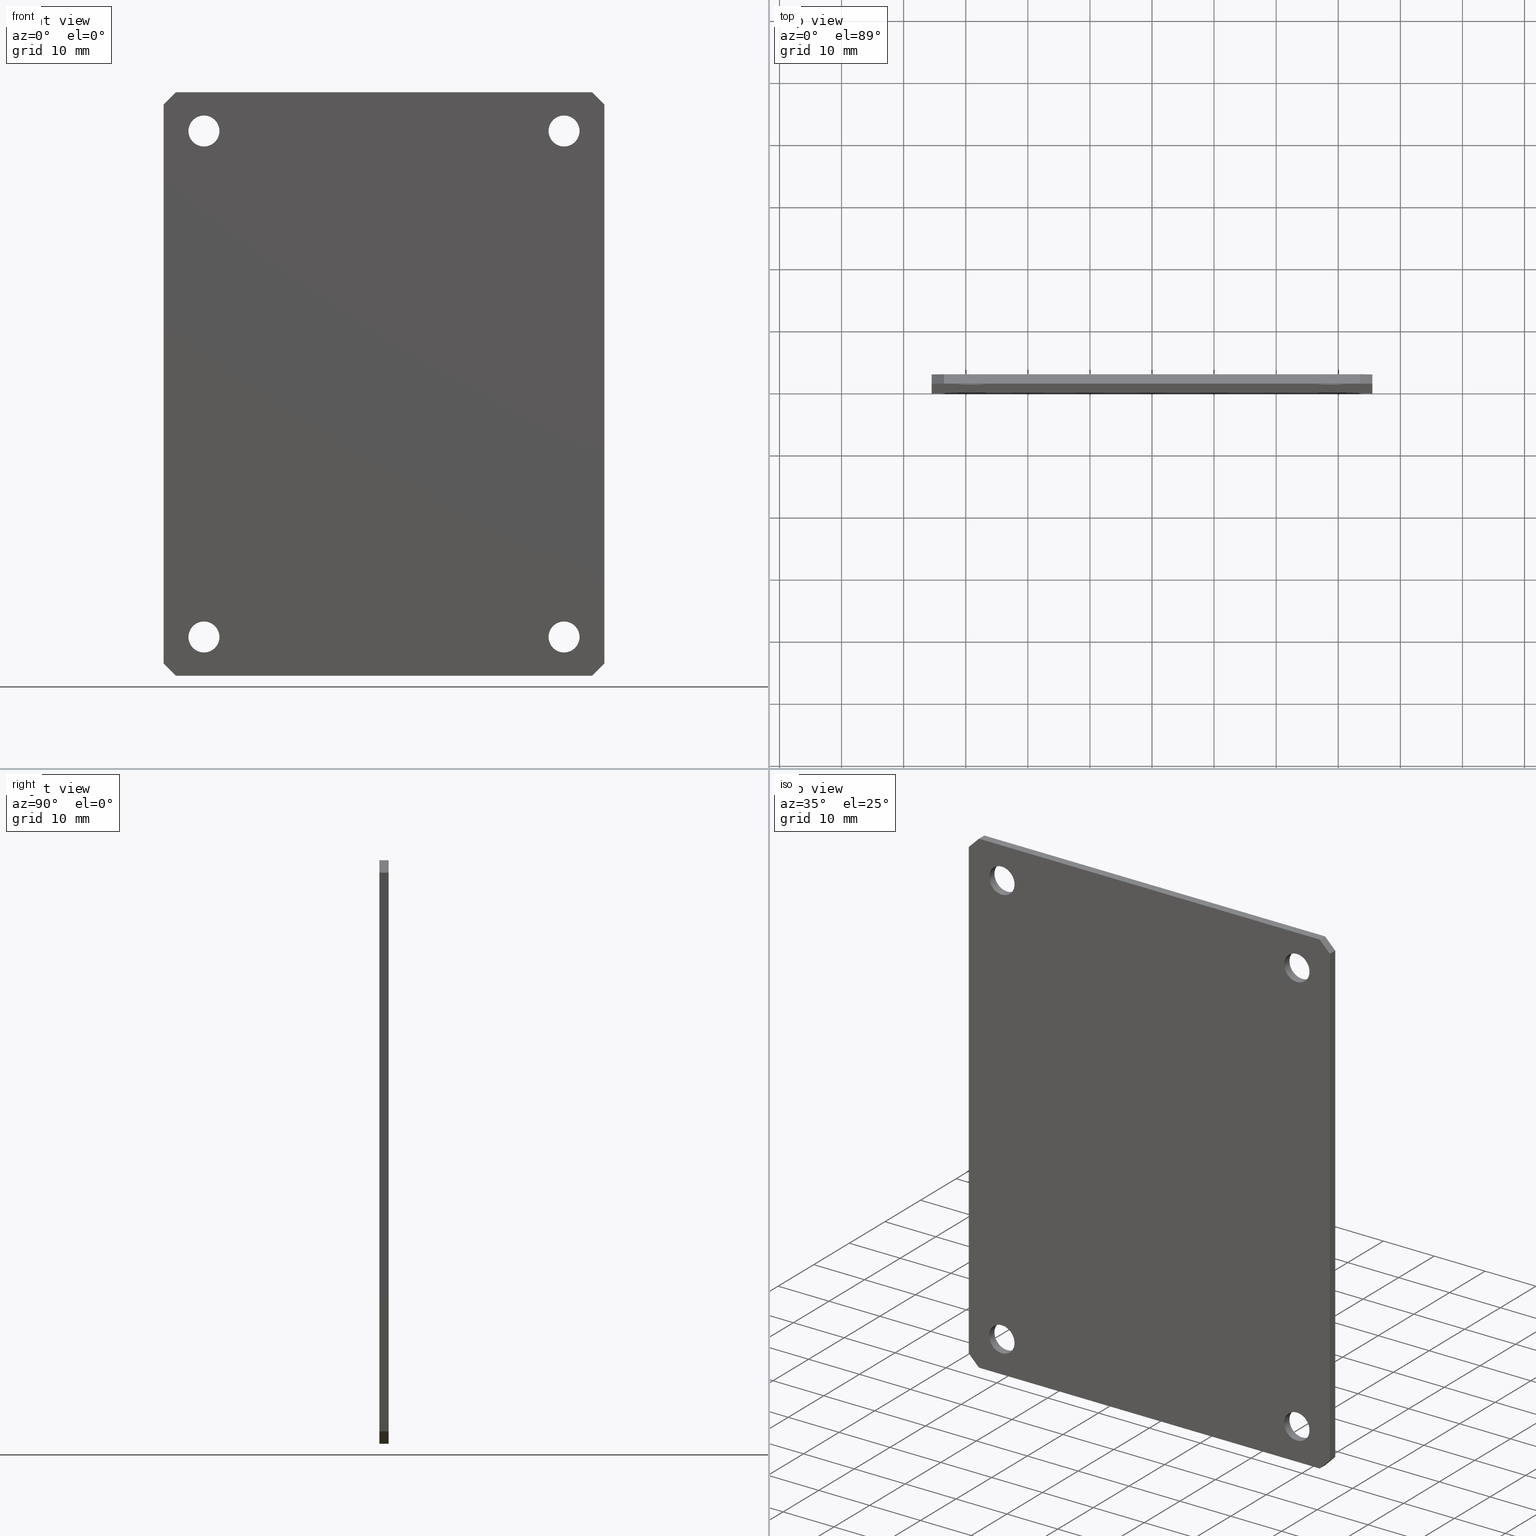
[diagram: canonical four-view strip — front | top / right | iso, engineering-drawing reading convention]
A machine part, canonical four-view strip (front | top / right | iso — engineering-drawing reading convention). The complete STEP part file that produces these views, byte-faithful:
ISO-10303-21;
HEADER;
FILE_DESCRIPTION (( 'STEP AP214' ),
    '1' );
FILE_NAME ('TM 0812.STEP',
    '2010-02-17T12:29:35',
    ( 'KennethW' ),
    ( 'FIBOX' ),
    'SwSTEP 2.0',
    'SolidWorks 2009',
    '' );
FILE_SCHEMA (( 'AUTOMOTIVE_DESIGN' ));
ENDSEC;

DATA;
#1 = VERTEX_POINT ( 'NONE', #412 ) ;
#2 = ORIENTED_EDGE ( 'NONE', *, *, #6, .F. ) ;
#3 = EDGE_CURVE ( 'NONE', #147, #1, #605, .T. ) ;
#4 = ORIENTED_EDGE ( 'NONE', *, *, #3, .T. ) ;
#5 = VERTEX_POINT ( 'NONE', #393 ) ;
#6 = EDGE_CURVE ( 'NONE', #5, #138, #392, .T. ) ;
#7 = ORIENTED_EDGE ( 'NONE', *, *, #63, .F. ) ;
#8 = ORIENTED_EDGE ( 'NONE', *, *, #9, .F. ) ;
#9 = EDGE_CURVE ( 'NONE', #12, #134, #400, .T. ) ;
#10 = ORIENTED_EDGE ( 'NONE', *, *, #60, .F. ) ;
#11 = ORIENTED_EDGE ( 'NONE', *, *, #24, .F. ) ;
#12 = VERTEX_POINT ( 'NONE', #395 ) ;
#13 = VERTEX_POINT ( 'NONE', #396 ) ;
#14 = EDGE_LOOP ( 'NONE', ( #49, #117, #111, #92 ) ) ;
#15 = ORIENTED_EDGE ( 'NONE', *, *, #16, .F. ) ;
#16 = EDGE_CURVE ( 'NONE', #134, #17, #411, .T. ) ;
#17 = VERTEX_POINT ( 'NONE', #407 ) ;
#18 = ORIENTED_EDGE ( 'NONE', *, *, #59, .T. ) ;
#19 = EDGE_CURVE ( 'NONE', #17, #62, #406, .T. ) ;
#20 = EDGE_LOOP ( 'NONE', ( #34, #33, #22, #130 ) ) ;
#21 = ORIENTED_EDGE ( 'NONE', *, *, #19, .F. ) ;
#22 = ORIENTED_EDGE ( 'NONE', *, *, #143, .F. ) ;
#23 = ADVANCED_FACE ( 'NONE', ( #402 ), #401, .F. ) ;
#24 = EDGE_CURVE ( 'NONE', #199, #198, #538, .T. ) ;
#25 = EDGE_LOOP ( 'NONE', ( #28, #26 ) ) ;
#26 = ORIENTED_EDGE ( 'NONE', *, *, #27, .T. ) ;
#27 = EDGE_CURVE ( 'NONE', #212, #215, #529, .T. ) ;
#28 = ORIENTED_EDGE ( 'NONE', *, *, #214, .T. ) ;
#29 = ADVANCED_FACE ( 'NONE', ( #524, #523, #522, #521, #520 ), #519, .F. ) ;
#30 = EDGE_LOOP ( 'NONE', ( #181, #179 ) ) ;
#31 = EDGE_CURVE ( 'NONE', #144, #140, #517, .T. ) ;
#32 = EDGE_CURVE ( 'NONE', #191, #190, #510, .T. ) ;
#33 = ORIENTED_EDGE ( 'NONE', *, *, #31, .F. ) ;
#34 = ORIENTED_EDGE ( 'NONE', *, *, #139, .T. ) ;
#35 = ORIENTED_EDGE ( 'NONE', *, *, #166, .T. ) ;
#36 = EDGE_LOOP ( 'NONE', ( #37, #43 ) ) ;
#37 = ORIENTED_EDGE ( 'NONE', *, *, #219, .T. ) ;
#38 = EDGE_CURVE ( 'NONE', #140, #13, #505, .T. ) ;
#39 = ORIENTED_EDGE ( 'NONE', *, *, #173, .T. ) ;
#40 = EDGE_CURVE ( 'NONE', #175, #174, #501, .T. ) ;
#41 = ORIENTED_EDGE ( 'NONE', *, *, #189, .F. ) ;
#42 = ORIENTED_EDGE ( 'NONE', *, *, #40, .T. ) ;
#43 = ORIENTED_EDGE ( 'NONE', *, *, #44, .T. ) ;
#44 = EDGE_CURVE ( 'NONE', #202, #220, #496, .T. ) ;
#45 = ADVANCED_FACE ( 'NONE', ( #491 ), #490, .F. ) ;
#46 = EDGE_CURVE ( 'NONE', #54, #222, #488, .T. ) ;
#47 = EDGE_LOOP ( 'NONE', ( #39, #42 ) ) ;
#48 = EDGE_LOOP ( 'NONE', ( #41, #137 ) ) ;
#49 = ORIENTED_EDGE ( 'NONE', *, *, #9, .T. ) ;
#50 = ORIENTED_EDGE ( 'NONE', *, *, #51, .T. ) ;
#51 = EDGE_CURVE ( 'NONE', #52, #57, #481, .T. ) ;
#52 = VERTEX_POINT ( 'NONE', #476 ) ;
#53 = EDGE_CURVE ( 'NONE', #57, #54, #477, .T. ) ;
#54 = VERTEX_POINT ( 'NONE', #472 ) ;
#55 = ORIENTED_EDGE ( 'NONE', *, *, #46, .T. ) ;
#56 = ORIENTED_EDGE ( 'NONE', *, *, #53, .T. ) ;
#57 = VERTEX_POINT ( 'NONE', #471 ) ;
#58 = EDGE_CURVE ( 'NONE', #185, #134, #470, .T. ) ;
#59 = EDGE_CURVE ( 'NONE', #185, #52, #466, .T. ) ;
#60 = EDGE_CURVE ( 'NONE', #13, #12, #462, .T. ) ;
#61 = ORIENTED_EDGE ( 'NONE', *, *, #38, .F. ) ;
#62 = VERTEX_POINT ( 'NONE', #458 ) ;
#63 = EDGE_CURVE ( 'NONE', #62, #5, #457, .T. ) ;
#64 = ORIENTED_EDGE ( 'NONE', *, *, #211, .F. ) ;
#65 = ORIENTED_EDGE ( 'NONE', *, *, #151, .T. ) ;
#66 = ORIENTED_EDGE ( 'NONE', *, *, #217, .T. ) ;
#67 = ORIENTED_EDGE ( 'NONE', *, *, #27, .F. ) ;
#68 = ADVANCED_FACE ( 'NONE', ( #453 ), #452, .F. ) ;
#69 = EDGE_LOOP ( 'NONE', ( #70, #71, #72, #73 ) ) ;
#70 = ORIENTED_EDGE ( 'NONE', *, *, #201, .F. ) ;
#71 = ORIENTED_EDGE ( 'NONE', *, *, #24, .T. ) ;
#72 = ORIENTED_EDGE ( 'NONE', *, *, #203, .T. ) ;
#73 = ORIENTED_EDGE ( 'NONE', *, *, #44, .F. ) ;
#74 = CLOSED_SHELL ( 'NONE', ( #194, #204, #186, #167, #159, #29, #45, #23, #124, #125, #106, #90, #114, #98, #104, #82, #75, #68 ) ) ;
#75 = ADVANCED_FACE ( 'NONE', ( #450 ), #446, .F. ) ;
#76 = EDGE_LOOP ( 'NONE', ( #64, #65, #66, #67 ) ) ;
#77 = ORIENTED_EDGE ( 'NONE', *, *, #40, .F. ) ;
#78 = ORIENTED_EDGE ( 'NONE', *, *, #156, .F. ) ;
#79 = ORIENTED_EDGE ( 'NONE', *, *, #148, .T. ) ;
#80 = ORIENTED_EDGE ( 'NONE', *, *, #158, .T. ) ;
#81 = ORIENTED_EDGE ( 'NONE', *, *, #182, .F. ) ;
#82 = ADVANCED_FACE ( 'NONE', ( #444 ), #440, .F. ) ;
#83 = ORIENTED_EDGE ( 'NONE', *, *, #19, .T. ) ;
#84 = ORIENTED_EDGE ( 'NONE', *, *, #85, .F. ) ;
#85 = EDGE_CURVE ( 'NONE', #57, #62, #435, .T. ) ;
#86 = ORIENTED_EDGE ( 'NONE', *, *, #87, .F. ) ;
#87 = EDGE_CURVE ( 'NONE', #52, #17, #431, .T. ) ;
#88 = ORIENTED_EDGE ( 'NONE', *, *, #59, .F. ) ;
#89 = ORIENTED_EDGE ( 'NONE', *, *, #58, .T. ) ;
#90 = ADVANCED_FACE ( 'NONE', ( #427 ), #425, .F. ) ;
#91 = EDGE_LOOP ( 'NONE', ( #83, #84, #112, #113 ) ) ;
#92 = ORIENTED_EDGE ( 'NONE', *, *, #126, .T. ) ;
#93 = ORIENTED_EDGE ( 'NONE', *, *, #63, .T. ) ;
#94 = ORIENTED_EDGE ( 'NONE', *, *, #95, .F. ) ;
#95 = EDGE_CURVE ( 'NONE', #54, #5, #426, .T. ) ;
#96 = ORIENTED_EDGE ( 'NONE', *, *, #53, .F. ) ;
#97 = ORIENTED_EDGE ( 'NONE', *, *, #85, .T. ) ;
#98 = ADVANCED_FACE ( 'NONE', ( #417 ), #416, .F. ) ;
#99 = EDGE_LOOP ( 'NONE', ( #100, #101, #102, #103 ) ) ;
#100 = ORIENTED_EDGE ( 'NONE', *, *, #6, .T. ) ;
#101 = ORIENTED_EDGE ( 'NONE', *, *, #133, .F. ) ;
#102 = ORIENTED_EDGE ( 'NONE', *, *, #46, .F. ) ;
#103 = ORIENTED_EDGE ( 'NONE', *, *, #95, .T. ) ;
#104 = ADVANCED_FACE ( 'NONE', ( #569 ), #568, .F. ) ;
#105 = EDGE_LOOP ( 'NONE', ( #78, #79, #80, #81 ) ) ;
#106 = ADVANCED_FACE ( 'NONE', ( #566 ), #562, .F. ) ;
#107 = ORIENTED_EDGE ( 'NONE', *, *, #16, .T. ) ;
#108 = EDGE_LOOP ( 'NONE', ( #109, #110, #35, #77 ) ) ;
#109 = ORIENTED_EDGE ( 'NONE', *, *, #177, .F. ) ;
#110 = ORIENTED_EDGE ( 'NONE', *, *, #32, .T. ) ;
#111 = ORIENTED_EDGE ( 'NONE', *, *, #184, .F. ) ;
#112 = ORIENTED_EDGE ( 'NONE', *, *, #51, .F. ) ;
#113 = ORIENTED_EDGE ( 'NONE', *, *, #87, .T. ) ;
#114 = ADVANCED_FACE ( 'NONE', ( #556 ), #560, .F. ) ;
#115 = EDGE_LOOP ( 'NONE', ( #93, #94, #96, #97 ) ) ;
#116 = EDGE_LOOP ( 'NONE', ( #107, #86, #88, #89 ) ) ;
#117 = ORIENTED_EDGE ( 'NONE', *, *, #58, .F. ) ;
#118 = EDGE_LOOP ( 'NONE', ( #122, #119, #120, #121 ) ) ;
#119 = ORIENTED_EDGE ( 'NONE', *, *, #126, .F. ) ;
#120 = ORIENTED_EDGE ( 'NONE', *, *, #3, .F. ) ;
#121 = ORIENTED_EDGE ( 'NONE', *, *, #129, .T. ) ;
#122 = ORIENTED_EDGE ( 'NONE', *, *, #60, .T. ) ;
#123 = ORIENTED_EDGE ( 'NONE', *, *, #31, .T. ) ;
#124 = ADVANCED_FACE ( 'NONE', ( #550 ), #553, .F. ) ;
#125 = ADVANCED_FACE ( 'NONE', ( #544 ), #547, .F. ) ;
#126 = EDGE_CURVE ( 'NONE', #1, #12, #539, .T. ) ;
#127 = ORIENTED_EDGE ( 'NONE', *, *, #129, .F. ) ;
#128 = ORIENTED_EDGE ( 'NONE', *, *, #146, .F. ) ;
#129 = EDGE_CURVE ( 'NONE', #147, #13, #599, .T. ) ;
#130 = ORIENTED_EDGE ( 'NONE', *, *, #133, .T. ) ;
#131 = EDGE_LOOP ( 'NONE', ( #132, #127, #128, #123 ) ) ;
#132 = ORIENTED_EDGE ( 'NONE', *, *, #38, .T. ) ;
#133 = EDGE_CURVE ( 'NONE', #222, #138, #595, .T. ) ;
#134 = VERTEX_POINT ( 'NONE', #591 ) ;
#135 = ORIENTED_EDGE ( 'NONE', *, *, #197, .F. ) ;
#136 = EDGE_LOOP ( 'NONE', ( #135, #11 ) ) ;
#137 = ORIENTED_EDGE ( 'NONE', *, *, #32, .F. ) ;
#138 = VERTEX_POINT ( 'NONE', #590 ) ;
#139 = EDGE_CURVE ( 'NONE', #138, #140, #589, .T. ) ;
#140 = VERTEX_POINT ( 'NONE', #585 ) ;
#141 = EDGE_LOOP ( 'NONE', ( #142, #145, #4, #183, #18, #50, #56, #55 ) ) ;
#142 = ORIENTED_EDGE ( 'NONE', *, *, #143, .T. ) ;
#143 = EDGE_CURVE ( 'NONE', #222, #144, #584, .T. ) ;
#144 = VERTEX_POINT ( 'NONE', #580 ) ;
#145 = ORIENTED_EDGE ( 'NONE', *, *, #146, .T. ) ;
#146 = EDGE_CURVE ( 'NONE', #144, #147, #579, .T. ) ;
#147 = VERTEX_POINT ( 'NONE', #575 ) ;
#148 = EDGE_CURVE ( 'NONE', #165, #164, #574, .T. ) ;
#149 = EDGE_LOOP ( 'NONE', ( #150, #176 ) ) ;
#150 = ORIENTED_EDGE ( 'NONE', *, *, #170, .F. ) ;
#151 = EDGE_CURVE ( 'NONE', #209, #208, #629, .T. ) ;
#152 = ORIENTED_EDGE ( 'NONE', *, *, #153, .F. ) ;
#153 = EDGE_CURVE ( 'NONE', #154, #163, #624, .T. ) ;
#154 = VERTEX_POINT ( 'NONE', #619 ) ;
#155 = ORIENTED_EDGE ( 'NONE', *, *, #156, .T. ) ;
#156 = EDGE_CURVE ( 'NONE', #165, #163, #618, .T. ) ;
#157 = ORIENTED_EDGE ( 'NONE', *, *, #158, .F. ) ;
#158 = EDGE_CURVE ( 'NONE', #164, #154, #614, .T. ) ;
#159 = ADVANCED_FACE ( 'NONE', ( #610, #609, #608, #607, #606 ), #232, .T. ) ;
#160 = EDGE_LOOP ( 'NONE', ( #161, #162 ) ) ;
#161 = ORIENTED_EDGE ( 'NONE', *, *, #207, .F. ) ;
#162 = ORIENTED_EDGE ( 'NONE', *, *, #151, .F. ) ;
#163 = VERTEX_POINT ( 'NONE', #227 ) ;
#164 = VERTEX_POINT ( 'NONE', #226 ) ;
#165 = VERTEX_POINT ( 'NONE', #225 ) ;
#166 = EDGE_CURVE ( 'NONE', #190, #174, #224, .T. ) ;
#167 = ADVANCED_FACE ( 'NONE', ( #250 ), #249, .F. ) ;
#168 = EDGE_LOOP ( 'NONE', ( #169, #155, #152, #157 ) ) ;
#169 = ORIENTED_EDGE ( 'NONE', *, *, #170, .T. ) ;
#170 = EDGE_CURVE ( 'NONE', #164, #165, #244, .T. ) ;
#171 = ORIENTED_EDGE ( 'NONE', *, *, #166, .F. ) ;
#172 = ORIENTED_EDGE ( 'NONE', *, *, #173, .F. ) ;
#173 = EDGE_CURVE ( 'NONE', #174, #175, #239, .T. ) ;
#174 = VERTEX_POINT ( 'NONE', #234 ) ;
#175 = VERTEX_POINT ( 'NONE', #233 ) ;
#176 = ORIENTED_EDGE ( 'NONE', *, *, #148, .F. ) ;
#177 = EDGE_CURVE ( 'NONE', #191, #175, #288, .T. ) ;
#178 = EDGE_LOOP ( 'NONE', ( #180, #2, #7, #21, #15, #8, #10, #61 ) ) ;
#179 = ORIENTED_EDGE ( 'NONE', *, *, #182, .T. ) ;
#180 = ORIENTED_EDGE ( 'NONE', *, *, #139, .F. ) ;
#181 = ORIENTED_EDGE ( 'NONE', *, *, #153, .T. ) ;
#182 = EDGE_CURVE ( 'NONE', #163, #154, #284, .T. ) ;
#183 = ORIENTED_EDGE ( 'NONE', *, *, #184, .T. ) ;
#184 = EDGE_CURVE ( 'NONE', #1, #185, #279, .T. ) ;
#185 = VERTEX_POINT ( 'NONE', #275 ) ;
#186 = ADVANCED_FACE ( 'NONE', ( #274 ), #273, .F. ) ;
#187 = EDGE_LOOP ( 'NONE', ( #188, #192, #172, #171 ) ) ;
#188 = ORIENTED_EDGE ( 'NONE', *, *, #189, .T. ) ;
#189 = EDGE_CURVE ( 'NONE', #190, #191, #268, .T. ) ;
#190 = VERTEX_POINT ( 'NONE', #263 ) ;
#191 = VERTEX_POINT ( 'NONE', #262 ) ;
#192 = ORIENTED_EDGE ( 'NONE', *, *, #177, .T. ) ;
#193 = MANIFOLD_SOLID_BREP ( 'NONE', #74 ) ;
#194 = ADVANCED_FACE ( 'NONE', ( #303 ), #302, .F. ) ;
#195 = EDGE_LOOP ( 'NONE', ( #196, #200, #218, #221 ) ) ;
#196 = ORIENTED_EDGE ( 'NONE', *, *, #197, .T. ) ;
#197 = EDGE_CURVE ( 'NONE', #198, #199, #301, .T. ) ;
#198 = VERTEX_POINT ( 'NONE', #292 ) ;
#199 = VERTEX_POINT ( 'NONE', #291 ) ;
#200 = ORIENTED_EDGE ( 'NONE', *, *, #201, .T. ) ;
#201 = EDGE_CURVE ( 'NONE', #199, #202, #290, .T. ) ;
#202 = VERTEX_POINT ( 'NONE', #339 ) ;
#203 = EDGE_CURVE ( 'NONE', #198, #220, #338, .T. ) ;
#204 = ADVANCED_FACE ( 'NONE', ( #334 ), #333, .F. ) ;
#205 = EDGE_LOOP ( 'NONE', ( #206, #210, #213, #216 ) ) ;
#206 = ORIENTED_EDGE ( 'NONE', *, *, #207, .T. ) ;
#207 = EDGE_CURVE ( 'NONE', #208, #209, #331, .T. ) ;
#208 = VERTEX_POINT ( 'NONE', #323 ) ;
#209 = VERTEX_POINT ( 'NONE', #322 ) ;
#210 = ORIENTED_EDGE ( 'NONE', *, *, #211, .T. ) ;
#211 = EDGE_CURVE ( 'NONE', #209, #212, #321, .T. ) ;
#212 = VERTEX_POINT ( 'NONE', #317 ) ;
#213 = ORIENTED_EDGE ( 'NONE', *, *, #214, .F. ) ;
#214 = EDGE_CURVE ( 'NONE', #215, #212, #316, .T. ) ;
#215 = VERTEX_POINT ( 'NONE', #311 ) ;
#216 = ORIENTED_EDGE ( 'NONE', *, *, #217, .F. ) ;
#217 = EDGE_CURVE ( 'NONE', #208, #215, #310, .T. ) ;
#218 = ORIENTED_EDGE ( 'NONE', *, *, #219, .F. ) ;
#219 = EDGE_CURVE ( 'NONE', #220, #202, #363, .T. ) ;
#220 = VERTEX_POINT ( 'NONE', #358 ) ;
#221 = ORIENTED_EDGE ( 'NONE', *, *, #203, .F. ) ;
#222 = VERTEX_POINT ( 'NONE', #357 ) ;
#223 = CARTESIAN_POINT ( 'NONE',  ( 29.00000000000000000, 1.500000000000000000, -43.25000000000000700 ) ) ;
#224 = LINE ( 'NONE', #223, #252 ) ;
#225 = CARTESIAN_POINT ( 'NONE',  ( -29.00000000000000000, 1.500000000000000000, -38.25000000000000000 ) ) ;
#226 = CARTESIAN_POINT ( 'NONE',  ( -29.00000000000000000, 1.500000000000000000, -43.25000000000000700 ) ) ;
#227 = CARTESIAN_POINT ( 'NONE',  ( -29.00000000000000000, 0.0000000000000000000, -38.25000000000000000 ) ) ;
#228 = DIRECTION ( 'NONE',  ( 0.0000000000000000000, -0.0000000000000000000, 1.000000000000000000 ) ) ;
#229 = DIRECTION ( 'NONE',  ( 0.0000000000000000000, 1.000000000000000000, 0.0000000000000000000 ) ) ;
#230 = CARTESIAN_POINT ( 'NONE',  ( 2.081668171172168500E-014, 1.500000000000000000, -80.50000000000042600 ) ) ;
#231 = AXIS2_PLACEMENT_3D ( 'NONE', #230, #229, #228 ) ;
#232 = PLANE ( 'NONE',  #231 ) ;
#233 = CARTESIAN_POINT ( 'NONE',  ( 29.00000000000000000, 0.0000000000000000000, -38.25000000000000000 ) ) ;
#234 = CARTESIAN_POINT ( 'NONE',  ( 29.00000000000000000, 0.0000000000000000000, -43.25000000000000700 ) ) ;
#235 = DIRECTION ( 'NONE',  ( 0.0000000000000000000, 0.0000000000000000000, -1.000000000000000000 ) ) ;
#236 = DIRECTION ( 'NONE',  ( -0.0000000000000000000, 1.000000000000000000, -0.0000000000000000000 ) ) ;
#237 = CARTESIAN_POINT ( 'NONE',  ( 29.00000000000000000, 0.0000000000000000000, -40.75000000000000000 ) ) ;
#238 = AXIS2_PLACEMENT_3D ( 'NONE', #237, #236, #235 ) ;
#239 = CIRCLE ( 'NONE', #238, 2.500000000000002200 ) ;
#240 = DIRECTION ( 'NONE',  ( 0.0000000000000000000, 0.0000000000000000000, 1.000000000000000000 ) ) ;
#241 = DIRECTION ( 'NONE',  ( 0.0000000000000000000, 1.000000000000000000, 0.0000000000000000000 ) ) ;
#242 = CARTESIAN_POINT ( 'NONE',  ( -29.00000000000000000, 1.500000000000000000, -40.75000000000000000 ) ) ;
#243 = AXIS2_PLACEMENT_3D ( 'NONE', #242, #241, #240 ) ;
#244 = CIRCLE ( 'NONE', #243, 2.500000000000002200 ) ;
#245 = DIRECTION ( 'NONE',  ( 0.0000000000000000000, 0.0000000000000000000, -1.000000000000000000 ) ) ;
#246 = DIRECTION ( 'NONE',  ( -0.0000000000000000000, -1.000000000000000000, -0.0000000000000000000 ) ) ;
#247 = AXIS2_PLACEMENT_3D ( 'NONE', #248, #246, #245 ) ;
#248 = CARTESIAN_POINT ( 'NONE',  ( -29.00000000000000000, 1.500000000000000000, -40.75000000000000000 ) ) ;
#249 = CYLINDRICAL_SURFACE ( 'NONE', #247, 2.500000000000002200 ) ;
#250 = FACE_OUTER_BOUND ( 'NONE', #168, .T. ) ;
#251 = DIRECTION ( 'NONE',  ( -0.0000000000000000000, -1.000000000000000000, -0.0000000000000000000 ) ) ;
#252 = VECTOR ( 'NONE', #251, 1000.000000000000000 ) ;
#253 = PRESENTATION_LAYER_ASSIGNMENT (  '', '', ( #254 ) ) ;
#254 = STYLED_ITEM ( 'NONE', ( #255 ), #193 ) ;
#255 = PRESENTATION_STYLE_ASSIGNMENT (( #256 ) ) ;
#256 = SURFACE_STYLE_USAGE ( .BOTH. , #257 ) ;
#257 = SURFACE_SIDE_STYLE ('',( #258 ) ) ;
#258 = SURFACE_STYLE_FILL_AREA ( #259 ) ;
#259 = FILL_AREA_STYLE ('',( #260 ) ) ;
#260 = FILL_AREA_STYLE_COLOUR ( '', #261 ) ;
#261 = COLOUR_RGB ( '',0.7529411764705882200, 0.7529411764705882200, 0.7529411764705882200 ) ;
#262 = CARTESIAN_POINT ( 'NONE',  ( 29.00000000000000000, 1.500000000000000000, -38.25000000000000000 ) ) ;
#263 = CARTESIAN_POINT ( 'NONE',  ( 29.00000000000000000, 1.500000000000000000, -43.25000000000000700 ) ) ;
#264 = DIRECTION ( 'NONE',  ( 0.0000000000000000000, 0.0000000000000000000, -1.000000000000000000 ) ) ;
#265 = DIRECTION ( 'NONE',  ( -0.0000000000000000000, 1.000000000000000000, -0.0000000000000000000 ) ) ;
#266 = CARTESIAN_POINT ( 'NONE',  ( 29.00000000000000000, 1.500000000000000000, -40.75000000000000000 ) ) ;
#267 = AXIS2_PLACEMENT_3D ( 'NONE', #266, #265, #264 ) ;
#268 = CIRCLE ( 'NONE', #267, 2.500000000000002200 ) ;
#269 = DIRECTION ( 'NONE',  ( 0.0000000000000000000, 0.0000000000000000000, -1.000000000000000000 ) ) ;
#270 = DIRECTION ( 'NONE',  ( -0.0000000000000000000, -1.000000000000000000, -0.0000000000000000000 ) ) ;
#271 = CARTESIAN_POINT ( 'NONE',  ( 29.00000000000000000, 1.500000000000000000, -40.75000000000000000 ) ) ;
#272 = AXIS2_PLACEMENT_3D ( 'NONE', #271, #270, #269 ) ;
#273 = CYLINDRICAL_SURFACE ( 'NONE', #272, 2.500000000000002200 ) ;
#274 = FACE_OUTER_BOUND ( 'NONE', #187, .T. ) ;
#275 = CARTESIAN_POINT ( 'NONE',  ( 33.49999999999999300, 1.500000000000000000, 46.99999999999999300 ) ) ;
#276 = DIRECTION ( 'NONE',  ( 1.000000000000000000, -0.0000000000000000000, -0.0000000000000000000 ) ) ;
#277 = VECTOR ( 'NONE', #276, 1000.000000000000000 ) ;
#278 = CARTESIAN_POINT ( 'NONE',  ( 33.49999999999999300, 1.500000000000000000, 46.99999999999999300 ) ) ;
#279 = LINE ( 'NONE', #278, #277 ) ;
#280 = DIRECTION ( 'NONE',  ( 0.0000000000000000000, 0.0000000000000000000, 1.000000000000000000 ) ) ;
#281 = DIRECTION ( 'NONE',  ( 0.0000000000000000000, 1.000000000000000000, 0.0000000000000000000 ) ) ;
#282 = CARTESIAN_POINT ( 'NONE',  ( -29.00000000000000000, 0.0000000000000000000, -40.75000000000000000 ) ) ;
#283 = AXIS2_PLACEMENT_3D ( 'NONE', #282, #281, #280 ) ;
#284 = CIRCLE ( 'NONE', #283, 2.500000000000002200 ) ;
#285 = DIRECTION ( 'NONE',  ( -0.0000000000000000000, -1.000000000000000000, -0.0000000000000000000 ) ) ;
#286 = VECTOR ( 'NONE', #285, 1000.000000000000000 ) ;
#287 = CARTESIAN_POINT ( 'NONE',  ( 29.00000000000000000, 1.500000000000000000, -38.25000000000000000 ) ) ;
#288 = LINE ( 'NONE', #287, #286 ) ;
#289 = CARTESIAN_POINT ( 'NONE',  ( -29.00000000000000000, 1.500000000000000000, 43.25000000000000700 ) ) ;
#290 = LINE ( 'NONE', #289, #341 ) ;
#291 = CARTESIAN_POINT ( 'NONE',  ( -29.00000000000000000, 1.500000000000000000, 43.25000000000000700 ) ) ;
#292 = CARTESIAN_POINT ( 'NONE',  ( -29.00000000000000000, 1.500000000000000000, 38.25000000000000000 ) ) ;
#293 = DIRECTION ( 'NONE',  ( 0.0000000000000000000, 0.0000000000000000000, -1.000000000000000000 ) ) ;
#294 = DIRECTION ( 'NONE',  ( -0.0000000000000000000, 1.000000000000000000, -0.0000000000000000000 ) ) ;
#295 = CARTESIAN_POINT ( 'NONE',  ( -29.00000000000000000, 1.500000000000000000, 40.75000000000000000 ) ) ;
#296 = AXIS2_PLACEMENT_3D ( 'NONE', #295, #294, #293 ) ;
#297 = DIRECTION ( 'NONE',  ( 0.0000000000000000000, 0.0000000000000000000, -1.000000000000000000 ) ) ;
#298 = DIRECTION ( 'NONE',  ( -0.0000000000000000000, -1.000000000000000000, -0.0000000000000000000 ) ) ;
#299 = CARTESIAN_POINT ( 'NONE',  ( -29.00000000000000000, 1.500000000000000000, 40.75000000000000000 ) ) ;
#300 = AXIS2_PLACEMENT_3D ( 'NONE', #299, #298, #297 ) ;
#301 = CIRCLE ( 'NONE', #296, 2.500000000000002200 ) ;
#302 = CYLINDRICAL_SURFACE ( 'NONE', #300, 2.500000000000002200 ) ;
#303 = FACE_OUTER_BOUND ( 'NONE', #195, .T. ) ;
#304 =( GEOMETRIC_REPRESENTATION_CONTEXT ( 3 ) GLOBAL_UNCERTAINTY_ASSIGNED_CONTEXT ( ( #305 ) ) GLOBAL_UNIT_ASSIGNED_CONTEXT ( ( #308, #307, #306 ) ) REPRESENTATION_CONTEXT ( 'NONE', 'WORKASPACE' ) );
#305 = UNCERTAINTY_MEASURE_WITH_UNIT (LENGTH_MEASURE( 1.000000000000000100E-005 ), #308, 'distance_accuracy_value', 'NONE');
#306 =( NAMED_UNIT ( * ) SI_UNIT ( $, .STERADIAN. ) SOLID_ANGLE_UNIT ( ) );
#307 =( NAMED_UNIT ( * ) PLANE_ANGLE_UNIT ( ) SI_UNIT ( $, .RADIAN. ) );
#308 =( LENGTH_UNIT ( ) NAMED_UNIT ( * ) SI_UNIT ( .MILLI., .METRE. ) );
#309 = MECHANICAL_DESIGN_GEOMETRIC_PRESENTATION_REPRESENTATION (  '', ( #254 ), #304 ) ;
#310 = LINE ( 'NONE', #366, #365 ) ;
#311 = CARTESIAN_POINT ( 'NONE',  ( 29.00000000000000000, 0.0000000000000000000, 38.25000000000000000 ) ) ;
#312 = DIRECTION ( 'NONE',  ( 0.0000000000000000000, 0.0000000000000000000, 1.000000000000000000 ) ) ;
#313 = DIRECTION ( 'NONE',  ( 0.0000000000000000000, 1.000000000000000000, 0.0000000000000000000 ) ) ;
#314 = CARTESIAN_POINT ( 'NONE',  ( 29.00000000000000000, 0.0000000000000000000, 40.75000000000000000 ) ) ;
#315 = AXIS2_PLACEMENT_3D ( 'NONE', #314, #313, #312 ) ;
#316 = CIRCLE ( 'NONE', #315, 2.500000000000002200 ) ;
#317 = CARTESIAN_POINT ( 'NONE',  ( 29.00000000000000000, 0.0000000000000000000, 43.25000000000000700 ) ) ;
#318 = DIRECTION ( 'NONE',  ( -0.0000000000000000000, -1.000000000000000000, -0.0000000000000000000 ) ) ;
#319 = VECTOR ( 'NONE', #318, 1000.000000000000000 ) ;
#320 = CARTESIAN_POINT ( 'NONE',  ( 29.00000000000000000, 1.500000000000000000, 43.25000000000000700 ) ) ;
#321 = LINE ( 'NONE', #320, #319 ) ;
#322 = CARTESIAN_POINT ( 'NONE',  ( 29.00000000000000000, 1.500000000000000000, 43.25000000000000700 ) ) ;
#323 = CARTESIAN_POINT ( 'NONE',  ( 29.00000000000000000, 1.500000000000000000, 38.25000000000000000 ) ) ;
#324 = DIRECTION ( 'NONE',  ( 0.0000000000000000000, 0.0000000000000000000, 1.000000000000000000 ) ) ;
#325 = DIRECTION ( 'NONE',  ( 0.0000000000000000000, 1.000000000000000000, 0.0000000000000000000 ) ) ;
#326 = CARTESIAN_POINT ( 'NONE',  ( 29.00000000000000000, 1.500000000000000000, 40.75000000000000000 ) ) ;
#327 = AXIS2_PLACEMENT_3D ( 'NONE', #326, #325, #324 ) ;
#328 = DIRECTION ( 'NONE',  ( 0.0000000000000000000, 0.0000000000000000000, -1.000000000000000000 ) ) ;
#329 = DIRECTION ( 'NONE',  ( -0.0000000000000000000, -1.000000000000000000, -0.0000000000000000000 ) ) ;
#330 = AXIS2_PLACEMENT_3D ( 'NONE', #332, #329, #328 ) ;
#331 = CIRCLE ( 'NONE', #327, 2.500000000000002200 ) ;
#332 = CARTESIAN_POINT ( 'NONE',  ( 29.00000000000000000, 1.500000000000000000, 40.75000000000000000 ) ) ;
#333 = CYLINDRICAL_SURFACE ( 'NONE', #330, 2.500000000000002200 ) ;
#334 = FACE_OUTER_BOUND ( 'NONE', #205, .T. ) ;
#335 = DIRECTION ( 'NONE',  ( -0.0000000000000000000, -1.000000000000000000, -0.0000000000000000000 ) ) ;
#336 = VECTOR ( 'NONE', #335, 1000.000000000000000 ) ;
#337 = CARTESIAN_POINT ( 'NONE',  ( -29.00000000000000000, 1.500000000000000000, 38.25000000000000000 ) ) ;
#338 = LINE ( 'NONE', #337, #336 ) ;
#339 = CARTESIAN_POINT ( 'NONE',  ( -29.00000000000000000, 0.0000000000000000000, 43.25000000000000700 ) ) ;
#340 = DIRECTION ( 'NONE',  ( -0.0000000000000000000, -1.000000000000000000, -0.0000000000000000000 ) ) ;
#341 = VECTOR ( 'NONE', #340, 1000.000000000000000 ) ;
#342 = PRESENTATION_STYLE_ASSIGNMENT (( #343 ) ) ;
#343 = SURFACE_STYLE_USAGE ( .BOTH. , #344 ) ;
#344 = SURFACE_SIDE_STYLE ('',( #345 ) ) ;
#345 = SURFACE_STYLE_FILL_AREA ( #346 ) ;
#346 = FILL_AREA_STYLE ('',( #347 ) ) ;
#347 = FILL_AREA_STYLE_COLOUR ( '', #348 ) ;
#348 = COLOUR_RGB ( '',0.7529411764705882200, 0.7529411764705882200, 0.7529411764705882200 ) ;
#349 = APPLICATION_CONTEXT ( 'automotive_design' ) ;
#350 = ADVANCED_BREP_SHAPE_REPRESENTATION ( 'TM 0812', ( #193, #370 ), #351 ) ;
#351 =( GEOMETRIC_REPRESENTATION_CONTEXT ( 3 ) GLOBAL_UNCERTAINTY_ASSIGNED_CONTEXT ( ( #352 ) ) GLOBAL_UNIT_ASSIGNED_CONTEXT ( ( #355, #354, #353 ) ) REPRESENTATION_CONTEXT ( 'NONE', 'WORKASPACE' ) );
#352 = UNCERTAINTY_MEASURE_WITH_UNIT (LENGTH_MEASURE( 1.000000000000000100E-005 ), #355, 'distance_accuracy_value', 'NONE');
#353 =( NAMED_UNIT ( * ) SI_UNIT ( $, .STERADIAN. ) SOLID_ANGLE_UNIT ( ) );
#354 =( NAMED_UNIT ( * ) PLANE_ANGLE_UNIT ( ) SI_UNIT ( $, .RADIAN. ) );
#355 =( LENGTH_UNIT ( ) NAMED_UNIT ( * ) SI_UNIT ( .MILLI., .METRE. ) );
#356 = CARTESIAN_POINT ( 'NONE',  ( 0.0000000000000000000, 0.0000000000000000000, 0.0000000000000000000 ) ) ;
#357 = CARTESIAN_POINT ( 'NONE',  ( -33.49999999999999300, 1.500000000000000000, -46.99999999999999300 ) ) ;
#358 = CARTESIAN_POINT ( 'NONE',  ( -29.00000000000000000, 0.0000000000000000000, 38.25000000000000000 ) ) ;
#359 = DIRECTION ( 'NONE',  ( 0.0000000000000000000, 0.0000000000000000000, -1.000000000000000000 ) ) ;
#360 = DIRECTION ( 'NONE',  ( -0.0000000000000000000, 1.000000000000000000, -0.0000000000000000000 ) ) ;
#361 = CARTESIAN_POINT ( 'NONE',  ( -29.00000000000000000, 0.0000000000000000000, 40.75000000000000000 ) ) ;
#362 = AXIS2_PLACEMENT_3D ( 'NONE', #361, #360, #359 ) ;
#363 = CIRCLE ( 'NONE', #362, 2.500000000000002200 ) ;
#364 = DIRECTION ( 'NONE',  ( -0.0000000000000000000, -1.000000000000000000, -0.0000000000000000000 ) ) ;
#365 = VECTOR ( 'NONE', #364, 1000.000000000000000 ) ;
#366 = CARTESIAN_POINT ( 'NONE',  ( 29.00000000000000000, 1.500000000000000000, 38.25000000000000000 ) ) ;
#367 = SHAPE_DEFINITION_REPRESENTATION ( #386, #350 ) ;
#368 = DIRECTION ( 'NONE',  ( 1.000000000000000000, 0.0000000000000000000, 0.0000000000000000000 ) ) ;
#369 = DIRECTION ( 'NONE',  ( 0.0000000000000000000, 0.0000000000000000000, 1.000000000000000000 ) ) ;
#370 = AXIS2_PLACEMENT_3D ( 'NONE', #356, #369, #368 ) ;
#371 =( GEOMETRIC_REPRESENTATION_CONTEXT ( 3 ) GLOBAL_UNCERTAINTY_ASSIGNED_CONTEXT ( ( #372 ) ) GLOBAL_UNIT_ASSIGNED_CONTEXT ( ( #375, #374, #373 ) ) REPRESENTATION_CONTEXT ( 'NONE', 'WORKASPACE' ) );
#372 = UNCERTAINTY_MEASURE_WITH_UNIT (LENGTH_MEASURE( 1.000000000000000100E-005 ), #375, 'distance_accuracy_value', 'NONE');
#373 =( NAMED_UNIT ( * ) SI_UNIT ( $, .STERADIAN. ) SOLID_ANGLE_UNIT ( ) );
#374 =( NAMED_UNIT ( * ) PLANE_ANGLE_UNIT ( ) SI_UNIT ( $, .RADIAN. ) );
#375 =( LENGTH_UNIT ( ) NAMED_UNIT ( * ) SI_UNIT ( .MILLI., .METRE. ) );
#376 = MECHANICAL_DESIGN_GEOMETRIC_PRESENTATION_REPRESENTATION (  '', ( #378 ), #371 ) ;
#377 = PRESENTATION_LAYER_ASSIGNMENT (  '', '', ( #378 ) ) ;
#378 = STYLED_ITEM ( 'NONE', ( #342 ), #350 ) ;
#379 = PRODUCT_DEFINITION ( 'UNKNOWN', '', #388, #380 ) ;
#380 = PRODUCT_DEFINITION_CONTEXT ( 'detailed design', #382, 'design' ) ;
#381 = APPLICATION_PROTOCOL_DEFINITION ( 'draft international standard', 'automotive_design', 1998, #382 ) ;
#382 = APPLICATION_CONTEXT ( 'automotive_design' ) ;
#383 = PRODUCT ( 'TM 0812', 'TM 0812', '', ( #384 ) ) ;
#384 = PRODUCT_CONTEXT ( 'NONE', #349, 'mechanical' ) ;
#385 = APPLICATION_PROTOCOL_DEFINITION ( 'draft international standard', 'automotive_design', 1998, #349 ) ;
#386 = PRODUCT_DEFINITION_SHAPE ( 'NONE', 'NONE',  #379 ) ;
#387 = PRODUCT_RELATED_PRODUCT_CATEGORY ( 'part', '', ( #383 ) ) ;
#388 = PRODUCT_DEFINITION_FORMATION_WITH_SPECIFIED_SOURCE ( 'ANY', '', #383, .NOT_KNOWN. ) ;
#389 = DIRECTION ( 'NONE',  ( -1.000000000000000000, 0.0000000000000000000, 0.0000000000000000000 ) ) ;
#390 = VECTOR ( 'NONE', #389, 1000.000000000000000 ) ;
#391 = CARTESIAN_POINT ( 'NONE',  ( 33.49999999999999300, 0.0000000000000000000, -46.99999999999999300 ) ) ;
#392 = LINE ( 'NONE', #391, #390 ) ;
#393 = CARTESIAN_POINT ( 'NONE',  ( 33.49999999999999300, 0.0000000000000000000, -46.99999999999999300 ) ) ;
#394 = DIRECTION ( 'NONE',  ( 0.7071067811865425800, 0.0000000000000000000, 0.7071067811865525700 ) ) ;
#395 = CARTESIAN_POINT ( 'NONE',  ( -33.49999999999999300, 0.0000000000000000000, 46.99999999999999300 ) ) ;
#396 = CARTESIAN_POINT ( 'NONE',  ( -35.50000000000000000, 0.0000000000000000000, 44.99999999999996400 ) ) ;
#397 = DIRECTION ( 'NONE',  ( 1.000000000000000000, -0.0000000000000000000, -0.0000000000000000000 ) ) ;
#398 = VECTOR ( 'NONE', #397, 1000.000000000000000 ) ;
#399 = CARTESIAN_POINT ( 'NONE',  ( 33.49999999999999300, 0.0000000000000000000, 46.99999999999999300 ) ) ;
#400 = LINE ( 'NONE', #399, #398 ) ;
#401 = PLANE ( 'NONE',  #537 ) ;
#402 = FACE_OUTER_BOUND ( 'NONE', #131, .T. ) ;
#403 = DIRECTION ( 'NONE',  ( -0.0000000000000000000, -0.0000000000000000000, -1.000000000000000000 ) ) ;
#404 = VECTOR ( 'NONE', #403, 1000.000000000000000 ) ;
#405 = CARTESIAN_POINT ( 'NONE',  ( 35.50000000000000000, 0.0000000000000000000, -44.99999999999996400 ) ) ;
#406 = LINE ( 'NONE', #405, #404 ) ;
#407 = CARTESIAN_POINT ( 'NONE',  ( 35.50000000000000000, 0.0000000000000000000, 44.99999999999996400 ) ) ;
#408 = DIRECTION ( 'NONE',  ( 0.7071067811865425800, -0.0000000000000000000, -0.7071067811865525700 ) ) ;
#409 = VECTOR ( 'NONE', #408, 999.9999999999998900 ) ;
#410 = CARTESIAN_POINT ( 'NONE',  ( 35.50000000000000000, 0.0000000000000000000, 44.99999999999996400 ) ) ;
#411 = LINE ( 'NONE', #410, #409 ) ;
#412 = CARTESIAN_POINT ( 'NONE',  ( -33.49999999999999300, 1.500000000000000000, 46.99999999999999300 ) ) ;
#413 = DIRECTION ( 'NONE',  ( 0.0000000000000000000, -0.0000000000000000000, 1.000000000000000000 ) ) ;
#414 = CARTESIAN_POINT ( 'NONE',  ( 33.49999999999999300, 1.500000000000000000, -46.99999999999999300 ) ) ;
#415 = AXIS2_PLACEMENT_3D ( 'NONE', #414, #413, #570 ) ;
#416 = PLANE ( 'NONE',  #415 ) ;
#417 = FACE_OUTER_BOUND ( 'NONE', #99, .T. ) ;
#418 = DIRECTION ( 'NONE',  ( -0.0000000000000000000, -1.000000000000000000, -0.0000000000000000000 ) ) ;
#419 = VECTOR ( 'NONE', #418, 1000.000000000000000 ) ;
#420 = CARTESIAN_POINT ( 'NONE',  ( 33.49999999999999300, 1.500000000000000000, -46.99999999999999300 ) ) ;
#421 = DIRECTION ( 'NONE',  ( 0.0000000000000000000, 0.0000000000000000000, 1.000000000000000000 ) ) ;
#422 = DIRECTION ( 'NONE',  ( -1.000000000000000000, 0.0000000000000000000, 0.0000000000000000000 ) ) ;
#423 = CARTESIAN_POINT ( 'NONE',  ( 35.50000000000000000, 1.500000000000000000, -44.99999999999996400 ) ) ;
#424 = AXIS2_PLACEMENT_3D ( 'NONE', #423, #422, #421 ) ;
#425 = PLANE ( 'NONE',  #424 ) ;
#426 = LINE ( 'NONE', #420, #419 ) ;
#427 = FACE_OUTER_BOUND ( 'NONE', #91, .T. ) ;
#428 = DIRECTION ( 'NONE',  ( -0.0000000000000000000, -1.000000000000000000, -0.0000000000000000000 ) ) ;
#429 = VECTOR ( 'NONE', #428, 1000.000000000000000 ) ;
#430 = CARTESIAN_POINT ( 'NONE',  ( 35.50000000000000000, 1.500000000000000000, 44.99999999999996400 ) ) ;
#431 = LINE ( 'NONE', #430, #429 ) ;
#432 = DIRECTION ( 'NONE',  ( -0.0000000000000000000, -1.000000000000000000, -0.0000000000000000000 ) ) ;
#433 = VECTOR ( 'NONE', #432, 1000.000000000000000 ) ;
#434 = CARTESIAN_POINT ( 'NONE',  ( 35.50000000000000000, 1.500000000000000000, -44.99999999999996400 ) ) ;
#435 = LINE ( 'NONE', #434, #433 ) ;
#436 = DIRECTION ( 'NONE',  ( 0.0000000000000000000, 0.0000000000000000000, -1.000000000000000000 ) ) ;
#437 = DIRECTION ( 'NONE',  ( -0.0000000000000000000, -1.000000000000000000, -0.0000000000000000000 ) ) ;
#438 = AXIS2_PLACEMENT_3D ( 'NONE', #439, #437, #436 ) ;
#439 = CARTESIAN_POINT ( 'NONE',  ( 29.00000000000000000, 1.500000000000000000, -40.75000000000000000 ) ) ;
#440 = CYLINDRICAL_SURFACE ( 'NONE', #438, 2.500000000000002200 ) ;
#441 = DIRECTION ( 'NONE',  ( 0.0000000000000000000, 0.0000000000000000000, -1.000000000000000000 ) ) ;
#442 = DIRECTION ( 'NONE',  ( -0.0000000000000000000, -1.000000000000000000, -0.0000000000000000000 ) ) ;
#443 = AXIS2_PLACEMENT_3D ( 'NONE', #445, #442, #441 ) ;
#444 = FACE_OUTER_BOUND ( 'NONE', #108, .T. ) ;
#445 = CARTESIAN_POINT ( 'NONE',  ( 29.00000000000000000, 1.500000000000000000, 40.75000000000000000 ) ) ;
#446 = CYLINDRICAL_SURFACE ( 'NONE', #443, 2.500000000000002200 ) ;
#447 = DIRECTION ( 'NONE',  ( 0.0000000000000000000, 0.0000000000000000000, -1.000000000000000000 ) ) ;
#448 = DIRECTION ( 'NONE',  ( -0.0000000000000000000, -1.000000000000000000, -0.0000000000000000000 ) ) ;
#449 = AXIS2_PLACEMENT_3D ( 'NONE', #451, #448, #447 ) ;
#450 = FACE_OUTER_BOUND ( 'NONE', #76, .T. ) ;
#451 = CARTESIAN_POINT ( 'NONE',  ( -29.00000000000000000, 1.500000000000000000, 40.75000000000000000 ) ) ;
#452 = CYLINDRICAL_SURFACE ( 'NONE', #449, 2.500000000000002200 ) ;
#453 = FACE_OUTER_BOUND ( 'NONE', #69, .T. ) ;
#454 = DIRECTION ( 'NONE',  ( -0.7071067811865425800, 0.0000000000000000000, -0.7071067811865525700 ) ) ;
#455 = VECTOR ( 'NONE', #454, 999.9999999999998900 ) ;
#456 = CARTESIAN_POINT ( 'NONE',  ( 35.50000000000000000, 0.0000000000000000000, -44.99999999999996400 ) ) ;
#457 = LINE ( 'NONE', #456, #455 ) ;
#458 = CARTESIAN_POINT ( 'NONE',  ( 35.50000000000000000, 0.0000000000000000000, -44.99999999999996400 ) ) ;
#459 = DIRECTION ( 'NONE',  ( 0.7071067811865425800, 0.0000000000000000000, 0.7071067811865525700 ) ) ;
#460 = VECTOR ( 'NONE', #459, 999.9999999999998900 ) ;
#461 = CARTESIAN_POINT ( 'NONE',  ( -35.50000000000000000, 0.0000000000000000000, 44.99999999999996400 ) ) ;
#462 = LINE ( 'NONE', #461, #460 ) ;
#463 = DIRECTION ( 'NONE',  ( 0.7071067811865425800, -0.0000000000000000000, -0.7071067811865525700 ) ) ;
#464 = VECTOR ( 'NONE', #463, 999.9999999999998900 ) ;
#465 = CARTESIAN_POINT ( 'NONE',  ( 35.50000000000000000, 1.500000000000000000, 44.99999999999996400 ) ) ;
#466 = LINE ( 'NONE', #465, #464 ) ;
#467 = DIRECTION ( 'NONE',  ( -0.0000000000000000000, -1.000000000000000000, -0.0000000000000000000 ) ) ;
#468 = VECTOR ( 'NONE', #467, 1000.000000000000000 ) ;
#469 = CARTESIAN_POINT ( 'NONE',  ( 33.49999999999999300, 1.500000000000000000, 46.99999999999999300 ) ) ;
#470 = LINE ( 'NONE', #469, #468 ) ;
#471 = CARTESIAN_POINT ( 'NONE',  ( 35.50000000000000000, 1.500000000000000000, -44.99999999999996400 ) ) ;
#472 = CARTESIAN_POINT ( 'NONE',  ( 33.49999999999999300, 1.500000000000000000, -46.99999999999999300 ) ) ;
#473 = DIRECTION ( 'NONE',  ( -0.7071067811865425800, 0.0000000000000000000, -0.7071067811865525700 ) ) ;
#474 = VECTOR ( 'NONE', #473, 999.9999999999998900 ) ;
#475 = CARTESIAN_POINT ( 'NONE',  ( 35.50000000000000000, 1.500000000000000000, -44.99999999999996400 ) ) ;
#476 = CARTESIAN_POINT ( 'NONE',  ( 35.50000000000000000, 1.500000000000000000, 44.99999999999996400 ) ) ;
#477 = LINE ( 'NONE', #475, #474 ) ;
#478 = DIRECTION ( 'NONE',  ( -0.0000000000000000000, -0.0000000000000000000, -1.000000000000000000 ) ) ;
#479 = VECTOR ( 'NONE', #478, 1000.000000000000000 ) ;
#480 = CARTESIAN_POINT ( 'NONE',  ( 35.50000000000000000, 1.500000000000000000, -44.99999999999996400 ) ) ;
#481 = LINE ( 'NONE', #480, #479 ) ;
#482 = DIRECTION ( 'NONE',  ( -1.000000000000000000, 0.0000000000000000000, 0.0000000000000000000 ) ) ;
#483 = VECTOR ( 'NONE', #482, 1000.000000000000000 ) ;
#484 = CARTESIAN_POINT ( 'NONE',  ( 33.49999999999999300, 1.500000000000000000, -46.99999999999999300 ) ) ;
#485 = DIRECTION ( 'NONE',  ( 0.7071067811865425800, 0.0000000000000000000, -0.7071067811865525700 ) ) ;
#486 = DIRECTION ( 'NONE',  ( 0.7071067811865525700, -0.0000000000000000000, 0.7071067811865425800 ) ) ;
#487 = CARTESIAN_POINT ( 'NONE',  ( -35.50000000000000000, 1.500000000000000000, -44.99999999999996400 ) ) ;
#488 = LINE ( 'NONE', #484, #483 ) ;
#489 = AXIS2_PLACEMENT_3D ( 'NONE', #487, #486, #485 ) ;
#490 = PLANE ( 'NONE',  #489 ) ;
#491 = FACE_OUTER_BOUND ( 'NONE', #20, .T. ) ;
#492 = DIRECTION ( 'NONE',  ( 0.0000000000000000000, 0.0000000000000000000, -1.000000000000000000 ) ) ;
#493 = DIRECTION ( 'NONE',  ( -0.0000000000000000000, 1.000000000000000000, -0.0000000000000000000 ) ) ;
#494 = CARTESIAN_POINT ( 'NONE',  ( -29.00000000000000000, 0.0000000000000000000, 40.75000000000000000 ) ) ;
#495 = AXIS2_PLACEMENT_3D ( 'NONE', #494, #493, #492 ) ;
#496 = CIRCLE ( 'NONE', #495, 2.500000000000002200 ) ;
#497 = DIRECTION ( 'NONE',  ( 0.0000000000000000000, 0.0000000000000000000, -1.000000000000000000 ) ) ;
#498 = DIRECTION ( 'NONE',  ( -0.0000000000000000000, 1.000000000000000000, -0.0000000000000000000 ) ) ;
#499 = CARTESIAN_POINT ( 'NONE',  ( 29.00000000000000000, 0.0000000000000000000, -40.75000000000000000 ) ) ;
#500 = AXIS2_PLACEMENT_3D ( 'NONE', #499, #498, #497 ) ;
#501 = CIRCLE ( 'NONE', #500, 2.500000000000002200 ) ;
#502 = DIRECTION ( 'NONE',  ( 0.0000000000000000000, 0.0000000000000000000, 1.000000000000000000 ) ) ;
#503 = VECTOR ( 'NONE', #502, 1000.000000000000000 ) ;
#504 = CARTESIAN_POINT ( 'NONE',  ( -35.50000000000000000, 0.0000000000000000000, -44.99999999999996400 ) ) ;
#505 = LINE ( 'NONE', #504, #503 ) ;
#506 = DIRECTION ( 'NONE',  ( 0.0000000000000000000, 0.0000000000000000000, -1.000000000000000000 ) ) ;
#507 = DIRECTION ( 'NONE',  ( -0.0000000000000000000, 1.000000000000000000, -0.0000000000000000000 ) ) ;
#508 = CARTESIAN_POINT ( 'NONE',  ( 29.00000000000000000, 1.500000000000000000, -40.75000000000000000 ) ) ;
#509 = AXIS2_PLACEMENT_3D ( 'NONE', #508, #507, #506 ) ;
#510 = CIRCLE ( 'NONE', #509, 2.500000000000002200 ) ;
#511 = DIRECTION ( 'NONE',  ( -0.0000000000000000000, -1.000000000000000000, -0.0000000000000000000 ) ) ;
#512 = VECTOR ( 'NONE', #511, 1000.000000000000000 ) ;
#513 = CARTESIAN_POINT ( 'NONE',  ( -35.50000000000000000, 1.500000000000000000, -44.99999999999996400 ) ) ;
#514 = DIRECTION ( 'NONE',  ( 0.0000000000000000000, -0.0000000000000000000, 1.000000000000000000 ) ) ;
#515 = DIRECTION ( 'NONE',  ( 0.0000000000000000000, 1.000000000000000000, 0.0000000000000000000 ) ) ;
#516 = CARTESIAN_POINT ( 'NONE',  ( 2.081668171172168500E-014, 0.0000000000000000000, -80.50000000000042600 ) ) ;
#517 = LINE ( 'NONE', #513, #512 ) ;
#518 = AXIS2_PLACEMENT_3D ( 'NONE', #516, #515, #514 ) ;
#519 = PLANE ( 'NONE',  #518 ) ;
#520 = FACE_BOUND ( 'NONE', #36, .T. ) ;
#521 = FACE_BOUND ( 'NONE', #47, .T. ) ;
#522 = FACE_OUTER_BOUND ( 'NONE', #178, .T. ) ;
#523 = FACE_BOUND ( 'NONE', #30, .T. ) ;
#524 = FACE_BOUND ( 'NONE', #25, .T. ) ;
#525 = DIRECTION ( 'NONE',  ( 0.0000000000000000000, 0.0000000000000000000, 1.000000000000000000 ) ) ;
#526 = DIRECTION ( 'NONE',  ( 0.0000000000000000000, 1.000000000000000000, 0.0000000000000000000 ) ) ;
#527 = CARTESIAN_POINT ( 'NONE',  ( 29.00000000000000000, 0.0000000000000000000, 40.75000000000000000 ) ) ;
#528 = AXIS2_PLACEMENT_3D ( 'NONE', #527, #526, #525 ) ;
#529 = CIRCLE ( 'NONE', #528, 2.500000000000002200 ) ;
#530 = DIRECTION ( 'NONE',  ( 0.0000000000000000000, 0.0000000000000000000, -1.000000000000000000 ) ) ;
#531 = DIRECTION ( 'NONE',  ( -0.0000000000000000000, 1.000000000000000000, -0.0000000000000000000 ) ) ;
#532 = CARTESIAN_POINT ( 'NONE',  ( -29.00000000000000000, 1.500000000000000000, 40.75000000000000000 ) ) ;
#533 = AXIS2_PLACEMENT_3D ( 'NONE', #532, #531, #530 ) ;
#534 = DIRECTION ( 'NONE',  ( 0.0000000000000000000, 0.0000000000000000000, -1.000000000000000000 ) ) ;
#535 = DIRECTION ( 'NONE',  ( 1.000000000000000000, 0.0000000000000000000, 0.0000000000000000000 ) ) ;
#536 = CARTESIAN_POINT ( 'NONE',  ( -35.50000000000000000, 1.500000000000000000, -44.99999999999996400 ) ) ;
#537 = AXIS2_PLACEMENT_3D ( 'NONE', #536, #535, #534 ) ;
#538 = CIRCLE ( 'NONE', #533, 2.500000000000002200 ) ;
#539 = LINE ( 'NONE', #602, #601 ) ;
#540 = DIRECTION ( 'NONE',  ( -1.000000000000000000, 0.0000000000000000000, -0.0000000000000000000 ) ) ;
#541 = DIRECTION ( 'NONE',  ( 0.0000000000000000000, 0.0000000000000000000, -1.000000000000000000 ) ) ;
#542 = CARTESIAN_POINT ( 'NONE',  ( 33.49999999999999300, 1.500000000000000000, 46.99999999999999300 ) ) ;
#543 = AXIS2_PLACEMENT_3D ( 'NONE', #542, #541, #540 ) ;
#544 = FACE_OUTER_BOUND ( 'NONE', #14, .T. ) ;
#545 = DIRECTION ( 'NONE',  ( -0.7071067811865425800, 0.0000000000000000000, -0.7071067811865525700 ) ) ;
#546 = DIRECTION ( 'NONE',  ( 0.7071067811865525700, 0.0000000000000000000, -0.7071067811865425800 ) ) ;
#547 = PLANE ( 'NONE',  #543 ) ;
#548 = CARTESIAN_POINT ( 'NONE',  ( -35.50000000000000000, 1.500000000000000000, 44.99999999999996400 ) ) ;
#549 = AXIS2_PLACEMENT_3D ( 'NONE', #548, #546, #545 ) ;
#550 = FACE_OUTER_BOUND ( 'NONE', #118, .T. ) ;
#551 = DIRECTION ( 'NONE',  ( 0.7071067811865425800, 0.0000000000000000000, 0.7071067811865525700 ) ) ;
#552 = DIRECTION ( 'NONE',  ( -0.7071067811865525700, 0.0000000000000000000, 0.7071067811865425800 ) ) ;
#553 = PLANE ( 'NONE',  #549 ) ;
#554 = CARTESIAN_POINT ( 'NONE',  ( 35.50000000000000000, 1.500000000000000000, -44.99999999999996400 ) ) ;
#555 = AXIS2_PLACEMENT_3D ( 'NONE', #554, #552, #551 ) ;
#556 = FACE_OUTER_BOUND ( 'NONE', #115, .T. ) ;
#557 = DIRECTION ( 'NONE',  ( -0.7071067811865425800, 0.0000000000000000000, 0.7071067811865525700 ) ) ;
#558 = DIRECTION ( 'NONE',  ( -0.7071067811865525700, 0.0000000000000000000, -0.7071067811865425800 ) ) ;
#559 = CARTESIAN_POINT ( 'NONE',  ( 35.50000000000000000, 1.500000000000000000, 44.99999999999996400 ) ) ;
#560 = PLANE ( 'NONE',  #555 ) ;
#561 = AXIS2_PLACEMENT_3D ( 'NONE', #559, #558, #557 ) ;
#562 = PLANE ( 'NONE',  #561 ) ;
#563 = DIRECTION ( 'NONE',  ( 0.0000000000000000000, 0.0000000000000000000, -1.000000000000000000 ) ) ;
#564 = DIRECTION ( 'NONE',  ( -0.0000000000000000000, -1.000000000000000000, -0.0000000000000000000 ) ) ;
#565 = AXIS2_PLACEMENT_3D ( 'NONE', #567, #564, #563 ) ;
#566 = FACE_OUTER_BOUND ( 'NONE', #116, .T. ) ;
#567 = CARTESIAN_POINT ( 'NONE',  ( -29.00000000000000000, 1.500000000000000000, -40.75000000000000000 ) ) ;
#568 = CYLINDRICAL_SURFACE ( 'NONE', #565, 2.500000000000002200 ) ;
#569 = FACE_OUTER_BOUND ( 'NONE', #105, .T. ) ;
#570 = DIRECTION ( 'NONE',  ( 1.000000000000000000, 0.0000000000000000000, -0.0000000000000000000 ) ) ;
#571 = DIRECTION ( 'NONE',  ( 0.0000000000000000000, 1.000000000000000000, 0.0000000000000000000 ) ) ;
#572 = CARTESIAN_POINT ( 'NONE',  ( -29.00000000000000000, 1.500000000000000000, -40.75000000000000000 ) ) ;
#573 = AXIS2_PLACEMENT_3D ( 'NONE', #572, #571, #630 ) ;
#574 = CIRCLE ( 'NONE', #573, 2.500000000000002200 ) ;
#575 = CARTESIAN_POINT ( 'NONE',  ( -35.50000000000000000, 1.500000000000000000, 44.99999999999996400 ) ) ;
#576 = DIRECTION ( 'NONE',  ( 0.0000000000000000000, 0.0000000000000000000, 1.000000000000000000 ) ) ;
#577 = VECTOR ( 'NONE', #576, 1000.000000000000000 ) ;
#578 = CARTESIAN_POINT ( 'NONE',  ( -35.50000000000000000, 1.500000000000000000, -44.99999999999996400 ) ) ;
#579 = LINE ( 'NONE', #578, #577 ) ;
#580 = CARTESIAN_POINT ( 'NONE',  ( -35.50000000000000000, 1.500000000000000000, -44.99999999999996400 ) ) ;
#581 = DIRECTION ( 'NONE',  ( -0.7071067811865425800, -0.0000000000000000000, 0.7071067811865525700 ) ) ;
#582 = VECTOR ( 'NONE', #581, 999.9999999999998900 ) ;
#583 = CARTESIAN_POINT ( 'NONE',  ( -35.50000000000000000, 1.500000000000000000, -44.99999999999996400 ) ) ;
#584 = LINE ( 'NONE', #583, #582 ) ;
#585 = CARTESIAN_POINT ( 'NONE',  ( -35.50000000000000000, 0.0000000000000000000, -44.99999999999996400 ) ) ;
#586 = DIRECTION ( 'NONE',  ( -0.7071067811865425800, -0.0000000000000000000, 0.7071067811865525700 ) ) ;
#587 = VECTOR ( 'NONE', #586, 999.9999999999998900 ) ;
#588 = CARTESIAN_POINT ( 'NONE',  ( -35.50000000000000000, 0.0000000000000000000, -44.99999999999996400 ) ) ;
#589 = LINE ( 'NONE', #588, #587 ) ;
#590 = CARTESIAN_POINT ( 'NONE',  ( -33.49999999999999300, 0.0000000000000000000, -46.99999999999999300 ) ) ;
#591 = CARTESIAN_POINT ( 'NONE',  ( 33.49999999999999300, 0.0000000000000000000, 46.99999999999999300 ) ) ;
#592 = DIRECTION ( 'NONE',  ( -0.0000000000000000000, -1.000000000000000000, -0.0000000000000000000 ) ) ;
#593 = VECTOR ( 'NONE', #592, 1000.000000000000000 ) ;
#594 = CARTESIAN_POINT ( 'NONE',  ( -33.49999999999999300, 1.500000000000000000, -46.99999999999999300 ) ) ;
#595 = LINE ( 'NONE', #594, #593 ) ;
#596 = DIRECTION ( 'NONE',  ( -0.0000000000000000000, -1.000000000000000000, -0.0000000000000000000 ) ) ;
#597 = VECTOR ( 'NONE', #596, 1000.000000000000000 ) ;
#598 = CARTESIAN_POINT ( 'NONE',  ( -35.50000000000000000, 1.500000000000000000, 44.99999999999996400 ) ) ;
#599 = LINE ( 'NONE', #598, #597 ) ;
#600 = DIRECTION ( 'NONE',  ( -0.0000000000000000000, -1.000000000000000000, -0.0000000000000000000 ) ) ;
#601 = VECTOR ( 'NONE', #600, 1000.000000000000000 ) ;
#602 = CARTESIAN_POINT ( 'NONE',  ( -33.49999999999999300, 1.500000000000000000, 46.99999999999999300 ) ) ;
#603 = VECTOR ( 'NONE', #394, 999.9999999999998900 ) ;
#604 = CARTESIAN_POINT ( 'NONE',  ( -35.50000000000000000, 1.500000000000000000, 44.99999999999996400 ) ) ;
#605 = LINE ( 'NONE', #604, #603 ) ;
#606 = FACE_BOUND ( 'NONE', #136, .T. ) ;
#607 = FACE_BOUND ( 'NONE', #48, .T. ) ;
#608 = FACE_OUTER_BOUND ( 'NONE', #141, .T. ) ;
#609 = FACE_BOUND ( 'NONE', #149, .T. ) ;
#610 = FACE_BOUND ( 'NONE', #160, .T. ) ;
#611 = DIRECTION ( 'NONE',  ( -0.0000000000000000000, -1.000000000000000000, -0.0000000000000000000 ) ) ;
#612 = VECTOR ( 'NONE', #611, 1000.000000000000000 ) ;
#613 = CARTESIAN_POINT ( 'NONE',  ( -29.00000000000000000, 1.500000000000000000, -43.25000000000000700 ) ) ;
#614 = LINE ( 'NONE', #613, #612 ) ;
#615 = DIRECTION ( 'NONE',  ( -0.0000000000000000000, -1.000000000000000000, -0.0000000000000000000 ) ) ;
#616 = VECTOR ( 'NONE', #615, 1000.000000000000000 ) ;
#617 = CARTESIAN_POINT ( 'NONE',  ( -29.00000000000000000, 1.500000000000000000, -38.25000000000000000 ) ) ;
#618 = LINE ( 'NONE', #617, #616 ) ;
#619 = CARTESIAN_POINT ( 'NONE',  ( -29.00000000000000000, 0.0000000000000000000, -43.25000000000000700 ) ) ;
#620 = DIRECTION ( 'NONE',  ( 0.0000000000000000000, 0.0000000000000000000, 1.000000000000000000 ) ) ;
#621 = DIRECTION ( 'NONE',  ( 0.0000000000000000000, 1.000000000000000000, 0.0000000000000000000 ) ) ;
#622 = CARTESIAN_POINT ( 'NONE',  ( -29.00000000000000000, 0.0000000000000000000, -40.75000000000000000 ) ) ;
#623 = AXIS2_PLACEMENT_3D ( 'NONE', #622, #621, #620 ) ;
#624 = CIRCLE ( 'NONE', #623, 2.500000000000002200 ) ;
#625 = DIRECTION ( 'NONE',  ( 0.0000000000000000000, 0.0000000000000000000, 1.000000000000000000 ) ) ;
#626 = DIRECTION ( 'NONE',  ( 0.0000000000000000000, 1.000000000000000000, 0.0000000000000000000 ) ) ;
#627 = CARTESIAN_POINT ( 'NONE',  ( 29.00000000000000000, 1.500000000000000000, 40.75000000000000000 ) ) ;
#628 = AXIS2_PLACEMENT_3D ( 'NONE', #627, #626, #625 ) ;
#629 = CIRCLE ( 'NONE', #628, 2.500000000000002200 ) ;
#630 = DIRECTION ( 'NONE',  ( 0.0000000000000000000, 0.0000000000000000000, 1.000000000000000000 ) ) ;
ENDSEC;
END-ISO-10303-21;
